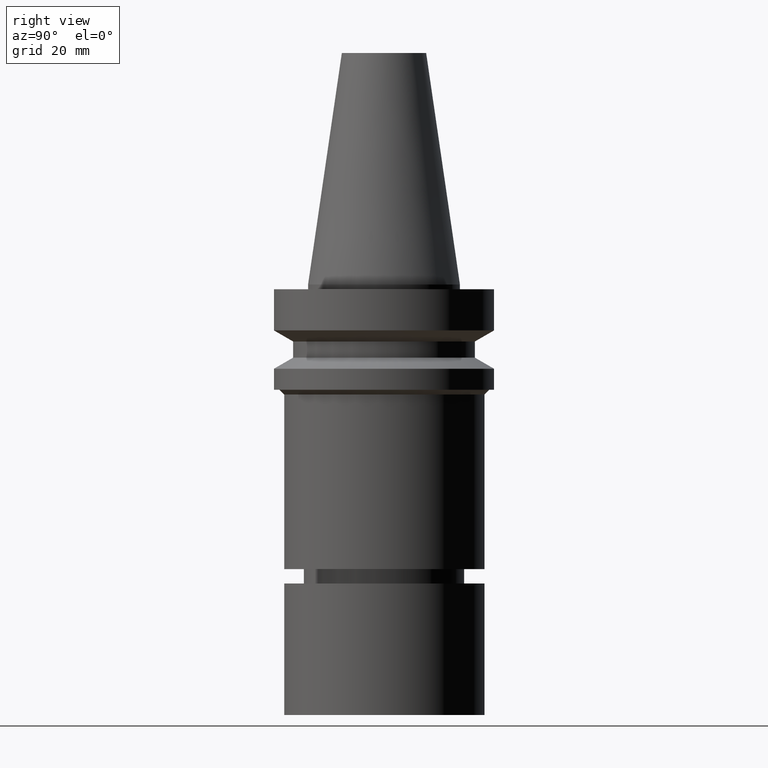
[diagram: clean part render]
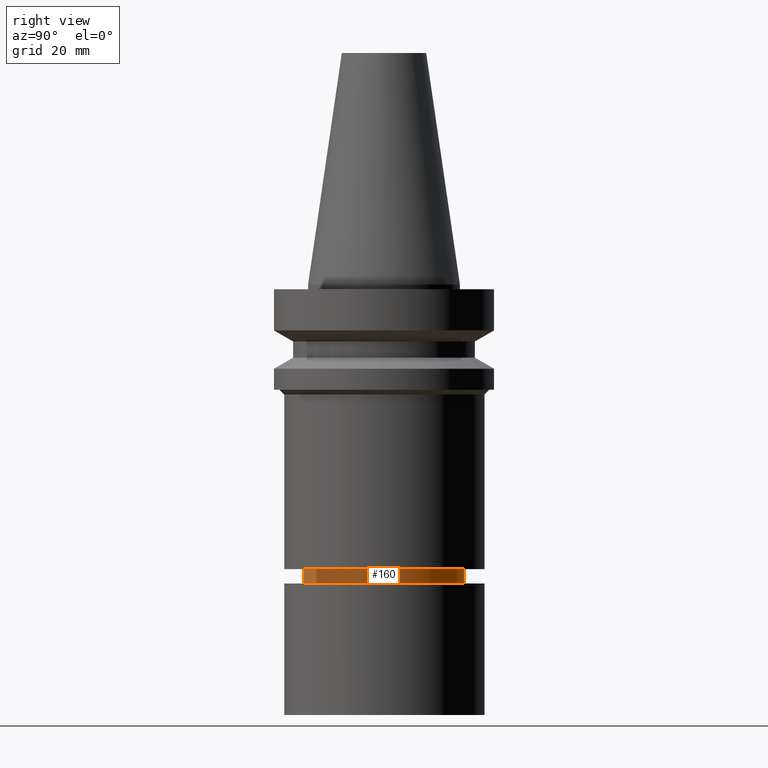
[diagram: same view with one face highlighted and labeled with its STEP entity id]
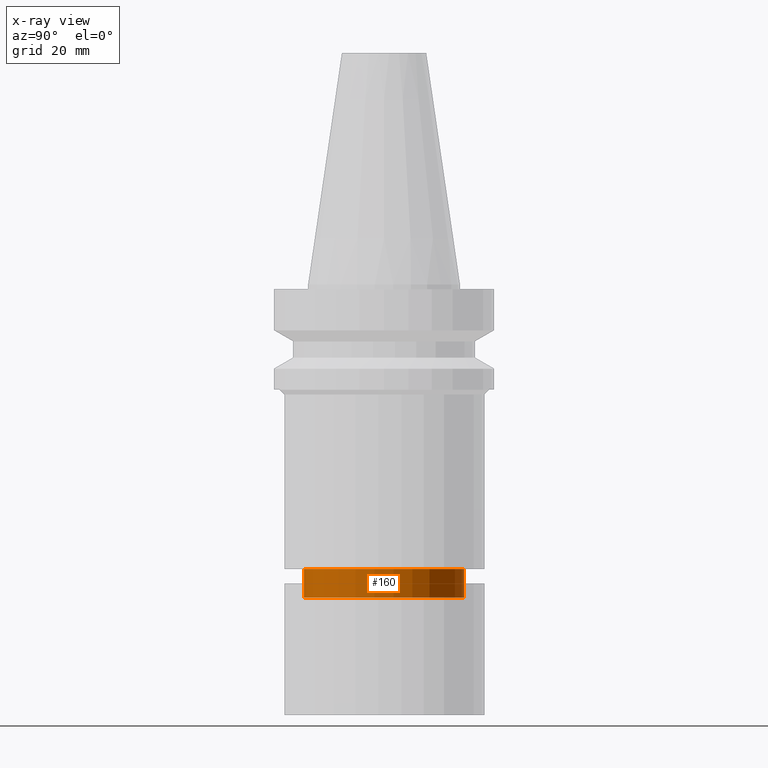
[diagram: x-ray of the same camera — body ghosted, the highlighted face saturated]
A machine part, right view. The second image highlights one B-rep face of the part: STEP entity #160.
The next image is the same camera in x-ray: the body ghosted, the highlighted face saturated — about 0% of this face is hidden behind the body in this view.
In plain terms, the highlighted cylindrical surface (bore or boss wall) has radius 16.75 mm, axis along (0, 0, -1).
Its self-contained STEP definition (entity closure, byte-faithful):
#114=EDGE_CURVE('Unnamed[1]',#262,#262,#263,.T.);
#155=EDGE_CURVE('Unnamed[1]',#322,#322,#323,.T.);
#160=ADVANCED_FACE('Unnamed[1]',(#329,#330),#331,.T.);
#262=VERTEX_POINT('',#453);
#263=CIRCLE('',#454,16.7499999999907);
#322=VERTEX_POINT('',#527);
#323=CIRCLE('',#528,16.7500000000017);
#329=FACE_BOUND('',#536,.T.);
#330=FACE_BOUND('',#537,.T.);
#331=CYLINDRICAL_SURFACE('',#538,16.7499999999962);
#453=CARTESIAN_POINT('',(3.64332422746333E-015,16.7499999999907,-59.4999999999992));
#454=AXIS2_PLACEMENT_3D('',#650,#651,#652);
#527=CARTESIAN_POINT('',(4.00871749225766E-015,16.7500000000017,-65.467324865401));
#528=AXIS2_PLACEMENT_3D('',#713,#714,#715);
#536=EDGE_LOOP('',(#720));
#537=EDGE_LOOP('',(#721));
#538=AXIS2_PLACEMENT_3D('',#722,#723,#724);
#650=CARTESIAN_POINT('',(3.64332422746333E-015,7.28664845492665E-015,-59.4999999999992));
#651=DIRECTION('',(6.12323399573677E-017,1.22464679914705E-016,-1.0));
#652=DIRECTION('',(-1.23259516440798E-032,1.0,1.22464679914705E-016));
#713=CARTESIAN_POINT('',(4.00871749225766E-015,8.01743498451532E-015,-65.467324865401));
#714=DIRECTION('',(6.12323399573677E-017,1.22464679914721E-016,-1.0));
#715=DIRECTION('',(-1.23259516440771E-032,1.0,1.22464679914721E-016));
#720=ORIENTED_EDGE('',*,*,#155,.F.);
#721=ORIENTED_EDGE('',*,*,#114,.T.);
#722=CARTESIAN_POINT('',(3.82602085986049E-015,7.65204171972099E-015,-62.4836624327001));
#723=DIRECTION('',(6.12323399573676E-017,1.22464679914761E-016,-1.0));
#724=DIRECTION('',(-1.23259516440758E-032,1.0,1.22464679914761E-016));